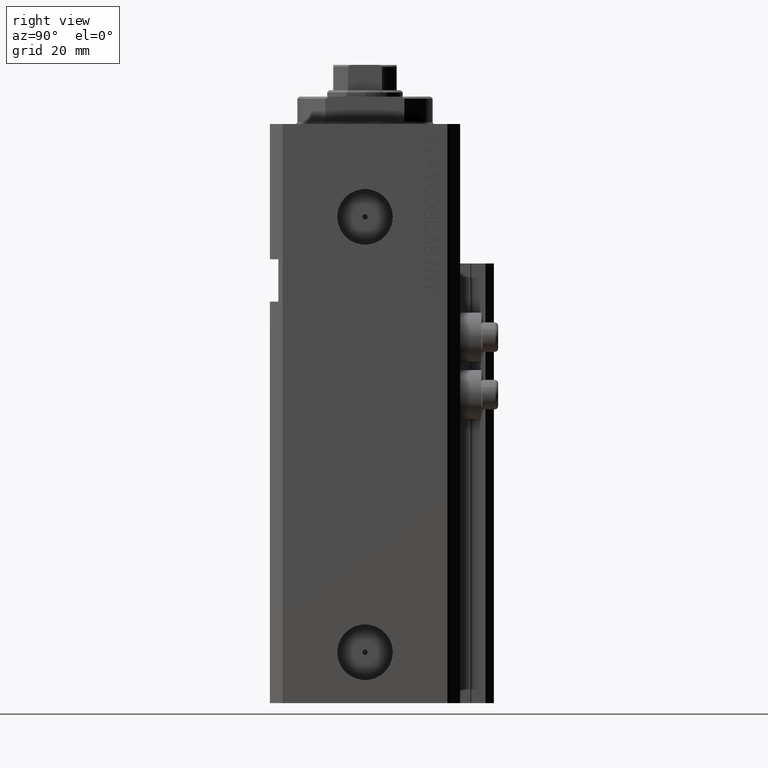
[diagram: clean part render]
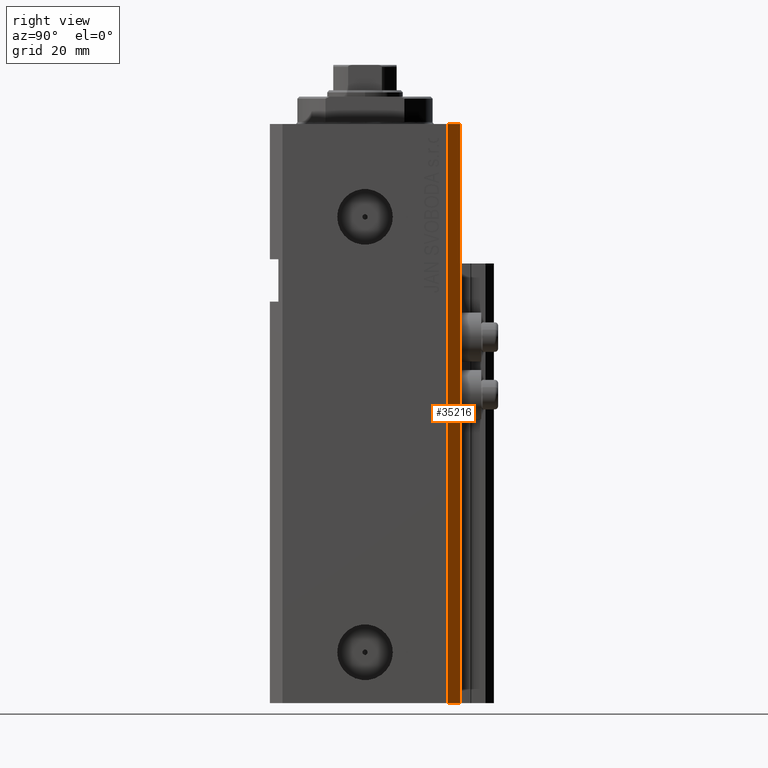
[diagram: same view with one face highlighted and labeled with its STEP entity id]
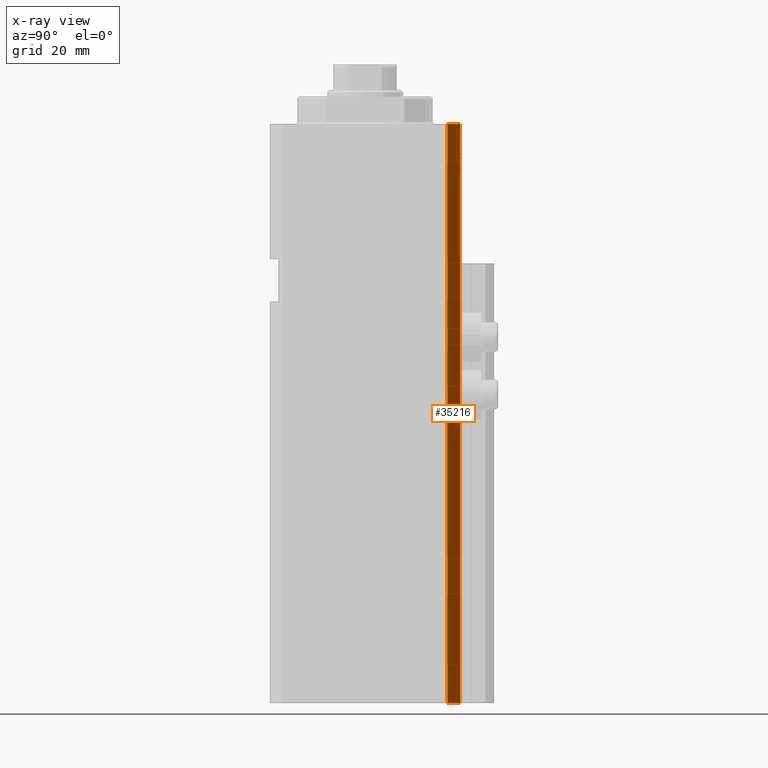
[diagram: x-ray of the same camera — body ghosted, the highlighted face saturated]
A machine part, right view. The second image highlights one B-rep face of the part: STEP entity #35216.
The next image is the same camera in x-ray: the body ghosted, the highlighted face saturated — about 0% of this face is hidden behind the body in this view.
In plain terms, the highlighted planar face has unit normal (0.7071, 0.7071, 0).
Its self-contained STEP definition (entity closure, byte-faithful):
#2615 = FACE_OUTER_BOUND ( 'NONE', #16615, .T. ) ;
#2640 = EDGE_CURVE ( 'NONE', #15336, #26915, #4099, .T. ) ;
#3790 = VECTOR ( 'NONE', #20308, 1000.000000000000000 ) ;
#4099 = LINE ( 'NONE', #18975, #30079 ) ;
#6987 = DIRECTION ( 'NONE',  ( 0.7071067811865597852, 0.7071067811865353603, -0.000000000000000000 ) ) ;
#7807 = VECTOR ( 'NONE', #11740, 1000.000000000000000 ) ;
#8434 = EDGE_CURVE ( 'NONE', #26915, #40316, #12787, .T. ) ;
#9125 = DIRECTION ( 'NONE',  ( 0.000000000000000000, 0.000000000000000000, 1.000000000000000000 ) ) ;
#11740 = DIRECTION ( 'NONE',  ( 0.000000000000000000, 0.000000000000000000, 1.000000000000000000 ) ) ;
#12787 = LINE ( 'NONE', #27661, #22157 ) ;
#13821 = PLANE ( 'NONE',  #26224 ) ;
#13950 = ORIENTED_EDGE ( 'NONE', *, *, #46676, .F. ) ;
#15336 = VERTEX_POINT ( 'NONE', #19596 ) ;
#15949 = CARTESIAN_POINT ( 'NONE',  ( 29.49999999999707967, 22.49999999999951328, 0.000000000000000000 ) ) ;
#16615 = EDGE_LOOP ( 'NONE', ( #33919, #13950, #43382, #42563 ) ) ;
#18739 = EDGE_CURVE ( 'NONE', #47807, #40316, #38825, .T. ) ;
#18975 = CARTESIAN_POINT ( 'NONE',  ( 32.49999999999702993, 19.49999999999945999, -137.0000000000000000 ) ) ;
#19596 = CARTESIAN_POINT ( 'NONE',  ( 32.49999999999702993, 19.49999999999945999, -137.0000000000000000 ) ) ;
#20308 = DIRECTION ( 'NONE',  ( -0.7071067811865352493, 0.7071067811865597852, 0.000000000000000000 ) ) ;
#22157 = VECTOR ( 'NONE', #9125, 1000.000000000000000 ) ;
#25061 = CARTESIAN_POINT ( 'NONE',  ( 32.49999999999702993, 19.49999999999945999, -137.0000000000000000 ) ) ;
#26224 = AXIS2_PLACEMENT_3D ( 'NONE', #25061, #6987, #29181 ) ;
#26884 = CARTESIAN_POINT ( 'NONE',  ( 32.49999999999702993, 19.49999999999945999, 0.000000000000000000 ) ) ;
#26915 = VERTEX_POINT ( 'NONE', #43281 ) ;
#27661 = CARTESIAN_POINT ( 'NONE',  ( 29.49999999999707967, 22.49999999999951328, -137.0000000000000000 ) ) ;
#28783 = CARTESIAN_POINT ( 'NONE',  ( 32.49999999999702993, 19.49999999999945999, 0.000000000000000000 ) ) ;
#29181 = DIRECTION ( 'NONE',  ( -0.7071067811865353603, 0.7071067811865597852, 0.000000000000000000 ) ) ;
#30079 = VECTOR ( 'NONE', #32978, 1000.000000000000000 ) ;
#32978 = DIRECTION ( 'NONE',  ( -0.7071067811865352493, 0.7071067811865597852, 0.000000000000000000 ) ) ;
#33698 = CARTESIAN_POINT ( 'NONE',  ( 32.49999999999702993, 19.49999999999945999, -137.0000000000000000 ) ) ;
#33919 = ORIENTED_EDGE ( 'NONE', *, *, #18739, .F. ) ;
#35216 = ADVANCED_FACE ( 'NONE', ( #2615 ), #13821, .T. ) ;
#38825 = LINE ( 'NONE', #26884, #3790 ) ;
#40316 = VERTEX_POINT ( 'NONE', #15949 ) ;
#42563 = ORIENTED_EDGE ( 'NONE', *, *, #8434, .T. ) ;
#43281 = CARTESIAN_POINT ( 'NONE',  ( 29.49999999999707967, 22.49999999999951328, -137.0000000000000000 ) ) ;
#43382 = ORIENTED_EDGE ( 'NONE', *, *, #2640, .T. ) ;
#44433 = LINE ( 'NONE', #33698, #7807 ) ;
#46676 = EDGE_CURVE ( 'NONE', #15336, #47807, #44433, .T. ) ;
#47807 = VERTEX_POINT ( 'NONE', #28783 ) ;